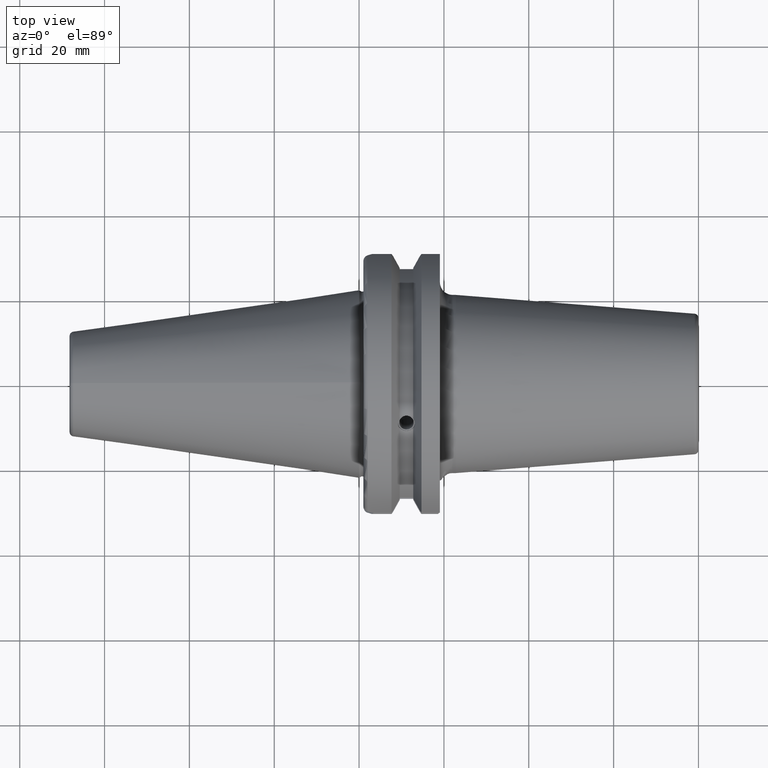
[diagram: clean part render]
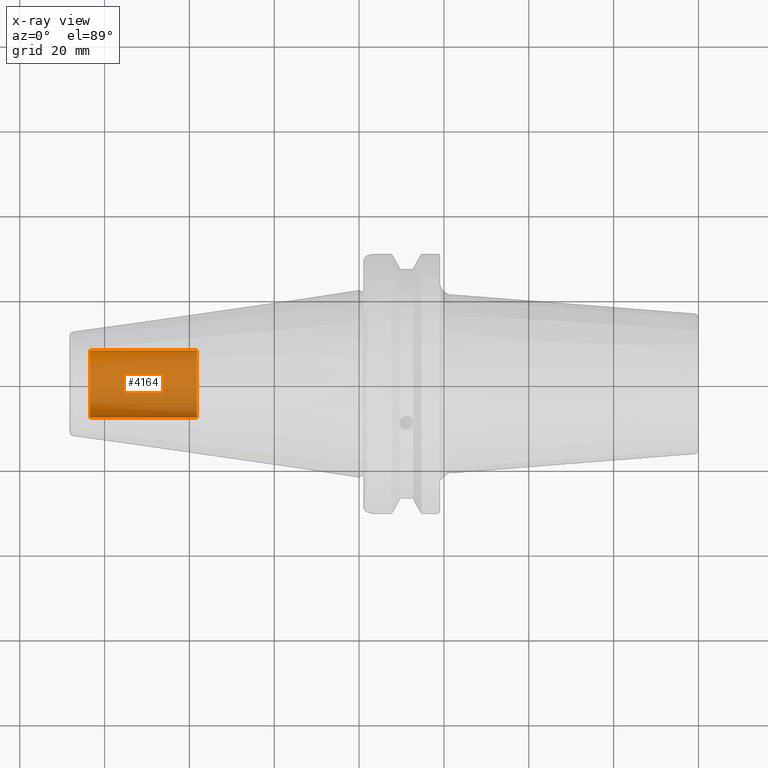
[diagram: x-ray — body ghosted, one internal face saturated and labeled with its STEP entity id]
A machine part, top view, then the same camera in x-ray: the body is ghosted and one INTERNAL B-rep face — a face not visible from any outside direction — is saturated and labeled: STEP entity #4164.
In plain terms, the highlighted cylindrical surface (edge-blend (fillet) strip) has radius 7.9375 mm, axis along (-1, 0, 0).
Its self-contained STEP definition (entity closure, byte-faithful):
#4099=CARTESIAN_POINT('',(-6.345E1,0.E0,0.E0));
#4100=DIRECTION('',(1.E0,0.E0,0.E0));
#4101=DIRECTION('',(0.E0,-1.E0,0.E0));
#4102=AXIS2_PLACEMENT_3D('',#4099,#4100,#4101);
#4109=DIRECTION('',(1.E0,0.E0,0.E0));
#4110=VECTOR('',#4109,2.52E1);
#4111=CARTESIAN_POINT('',(-6.345E1,-7.9375E0,0.E0));
#4112=LINE('',#4111,#4110);
#4113=DIRECTION('',(1.E0,0.E0,0.E0));
#4114=VECTOR('',#4113,2.52E1);
#4115=CARTESIAN_POINT('',(-6.345E1,7.9375E0,0.E0));
#4116=LINE('',#4115,#4114);
#4122=CARTESIAN_POINT('',(-3.825E1,0.E0,0.E0));
#4123=DIRECTION('',(-1.E0,0.E0,0.E0));
#4124=DIRECTION('',(0.E0,1.E0,0.E0));
#4125=AXIS2_PLACEMENT_3D('',#4122,#4123,#4124);
#4137=CARTESIAN_POINT('',(-3.825E1,7.9375E0,0.E0));
#4138=CARTESIAN_POINT('',(-3.825E1,-7.9375E0,0.E0));
#4139=VERTEX_POINT('',#4137);
#4140=VERTEX_POINT('',#4138);
#4141=CARTESIAN_POINT('',(-6.345E1,7.9375E0,0.E0));
#4142=CARTESIAN_POINT('',(-6.345E1,-7.9375E0,0.E0));
#4143=VERTEX_POINT('',#4141);
#4144=VERTEX_POINT('',#4142);
#4149=CARTESIAN_POINT('',(-1.658367445015E1,0.E0,0.E0));
#4150=DIRECTION('',(-1.E0,0.E0,0.E0));
#4151=DIRECTION('',(0.E0,1.E0,0.E0));
#4152=AXIS2_PLACEMENT_3D('',#4149,#4150,#4151);
#4153=CYLINDRICAL_SURFACE('',#4152,7.9375E0);
#4155=ORIENTED_EDGE('',*,*,#4154,.T.);
#4157=ORIENTED_EDGE('',*,*,#4156,.T.);
#4159=ORIENTED_EDGE('',*,*,#4158,.T.);
#4161=ORIENTED_EDGE('',*,*,#4160,.F.);
#4162=EDGE_LOOP('',(#4155,#4157,#4159,#4161));
#4163=FACE_OUTER_BOUND('',#4162,.F.);
#4164=ADVANCED_FACE('',(#4163),#4153,.F.);
#4103=CIRCLE('',#4102,7.9375E0);
#4126=CIRCLE('',#4125,7.9375E0);
#4154=EDGE_CURVE('',#4144,#4143,#4103,.T.);
#4156=EDGE_CURVE('',#4143,#4139,#4116,.T.);
#4158=EDGE_CURVE('',#4139,#4140,#4126,.T.);
#4160=EDGE_CURVE('',#4144,#4140,#4112,.T.);